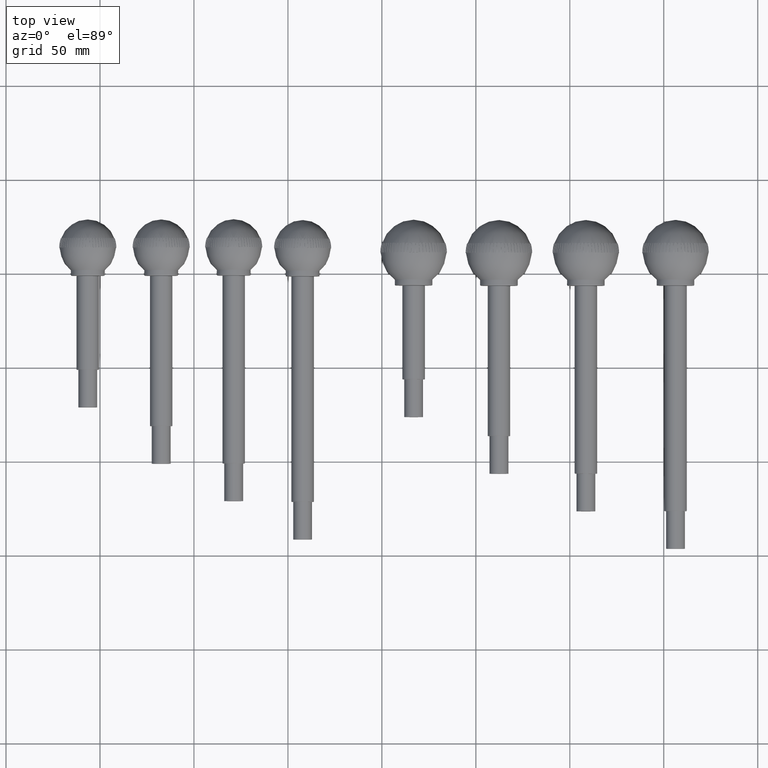
[diagram: clean part render]
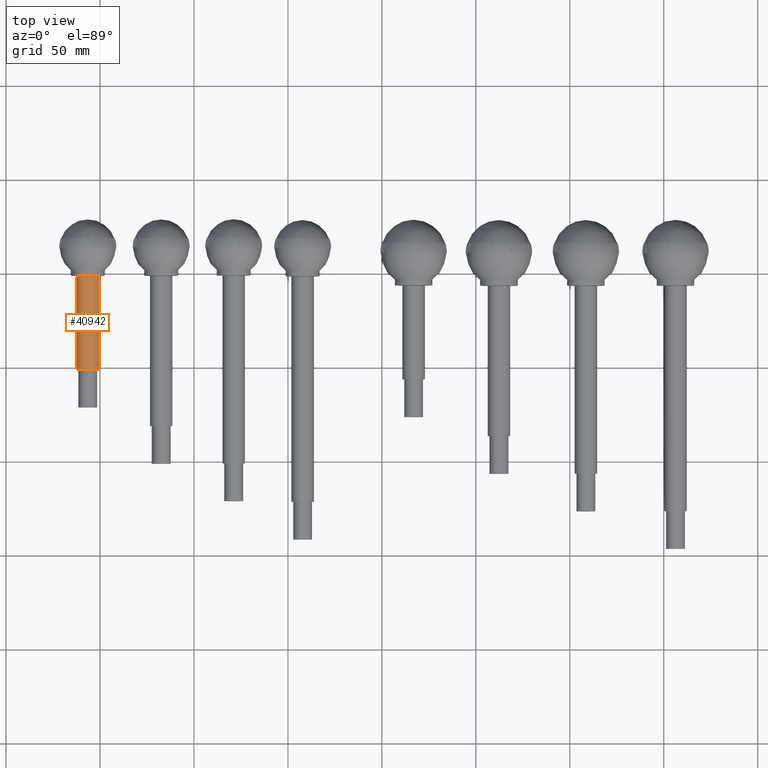
[diagram: same view with one face highlighted and labeled with its STEP entity id]
A machine part, top view. The second image highlights one B-rep face of the part: STEP entity #40942.
In plain terms, the highlighted cylindrical surface (bore or boss wall) has radius 5.975 mm, axis along (0, 1, 0).
Its self-contained STEP definition (entity closure, byte-faithful):
#6469=CYLINDRICAL_SURFACE('',#43967,5.97500000000001);
#6572=FACE_BOUND('',#9968,.T.);
#7382=FACE_OUTER_BOUND('',#9967,.T.);
#9967=EDGE_LOOP('',(#27887));
#9968=EDGE_LOOP('',(#27888));
#13168=CIRCLE('',#43965,5.97500000000001);
#13170=CIRCLE('',#43968,5.97500000000001);
#17112=VERTEX_POINT('',#66149);
#17114=VERTEX_POINT('',#66154);
#21296=EDGE_CURVE('',#17112,#17112,#13168,.T.);
#21298=EDGE_CURVE('',#17114,#17114,#13170,.T.);
#27887=ORIENTED_EDGE('',*,*,#21298,.F.);
#27888=ORIENTED_EDGE('',*,*,#21296,.F.);
#40942=ADVANCED_FACE('',(#7382,#6572),#6469,.T.);
#43965=AXIS2_PLACEMENT_3D('',#66150,#51512,#51513);
#43967=AXIS2_PLACEMENT_3D('',#66153,#51516,#51517);
#43968=AXIS2_PLACEMENT_3D('',#66155,#51518,#51519);
#51512=DIRECTION('center_axis',(1.,0.,0.));
#51513=DIRECTION('ref_axis',(0.,-1.,0.));
#51516=DIRECTION('center_axis',(1.,0.,0.));
#51517=DIRECTION('ref_axis',(0.,1.,0.));
#51518=DIRECTION('center_axis',(-1.,0.,0.));
#51519=DIRECTION('ref_axis',(0.,-1.,0.));
#66149=CARTESIAN_POINT('',(69.8,5.97500000000001,7.31726462490544E-16));
#66150=CARTESIAN_POINT('Origin',(69.8,0.,0.));
#66153=CARTESIAN_POINT('Origin',(45.,0.,0.));
#66154=CARTESIAN_POINT('',(20.2,5.97500000000001,-7.31726462490544E-16));
#66155=CARTESIAN_POINT('Origin',(20.2,0.,0.));